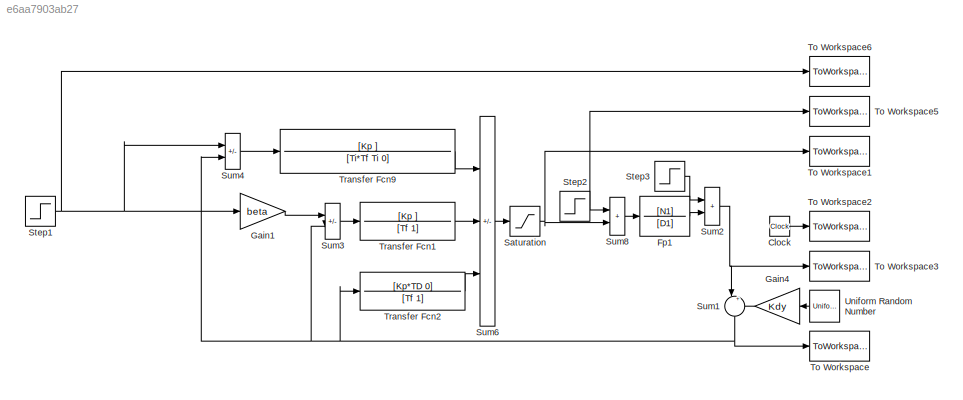
MODEL slx_e6aa7903ab27
KIND model
CONFIG AbsTol = atol
CONFIG EnableMultiTasking = off
CONFIG FixedStep = auto
CONFIG MaxStep = Tsm
CONFIG MinStep = auto
CONFIG RelTol = rtol
CONFIG SampleTimeConstraint = Unconstrained
CONFIG Solver = ode45
CONFIG SolverName = ode45
CONFIG StartTime = 0.0
CONFIG StopTime = simT
BLOCK [Clock] Clock
BLOCK [TransferFcn] Fp1
  Denominator = [D1]
  Numerator = [N1]
BLOCK [Gain] Gain1
  Gain = beta
  OutDataTypeStr = Inherit: Same as input
  ParamDataTypeStr = Inherit: Same as input
  SaturateOnIntegerOverflow = on
BLOCK [Gain] Gain4
  Gain = Kdy
  OutDataTypeStr = Inherit: Same as input
  ParamDataTypeStr = Inherit: Same as input
  SaturateOnIntegerOverflow = on
BLOCK [Saturate] Saturation
  LowerLimit = Umin
  UpperLimit = Umax
BLOCK [Step] Step1
  After = w1
  Before = w0
  SampleTime = Ts
  Time = tw
BLOCK [Step] Step2
  After = di1
  Before = di0
  SampleTime = Ts
  Time = ti
BLOCK [Step] Step3
  After = do
  Before = do0
  SampleTime = Ts
  Time = to
BLOCK [Sum] Sum1
  InputSameDT = on
  Inputs = |++
  OutDataTypeStr = Inherit: Same as first input
  Ports = [2, 1]
  SaturateOnIntegerOverflow = on
BLOCK [Sum] Sum2
  IconShape = rectangular
  InputSameDT = on
  OutDataTypeStr = Inherit: Same as first input
  Ports = [2, 1]
  SaturateOnIntegerOverflow = on
BLOCK [Sum] Sum3
  IconShape = rectangular
  InputSameDT = on
  Inputs = +-
  OutDataTypeStr = Inherit: Same as first input
  Ports = [2, 1]
  SaturateOnIntegerOverflow = on
BLOCK [Sum] Sum4
  IconShape = rectangular
  InputSameDT = on
  Inputs = +-
  OutDataTypeStr = Inherit: Same as first input
  Ports = [2, 1]
  SaturateOnIntegerOverflow = on
BLOCK [Sum] Sum6
  IconShape = rectangular
  InputSameDT = on
  Inputs = ++-
  OutDataTypeStr = Inherit: Same as first input
  Ports = [3, 1]
  SaturateOnIntegerOverflow = on
BLOCK [Sum] Sum8
  IconShape = rectangular
  InputSameDT = on
  OutDataTypeStr = Inherit: Same as first input
  Ports = [2, 1]
  SaturateOnIntegerOverflow = on
BLOCK [ToWorkspace] To Workspace
  MaxDataPoints = inf
  Ports = [1]
  SampleTime = Ts
  VariableName = ym
BLOCK [ToWorkspace] To Workspace1
  MaxDataPoints = inf
  Ports = [1]
  SampleTime = Ts
  VariableName = u
BLOCK [ToWorkspace] To Workspace2
  MaxDataPoints = inf
  Ports = [1]
  SampleTime = Ts
  VariableName = t
BLOCK [ToWorkspace] To Workspace3
  MaxDataPoints = inf
  Ports = [1]
  SampleTime = Ts
  VariableName = y
BLOCK [ToWorkspace] To Workspace5
  MaxDataPoints = inf
  Ports = [1]
  SampleTime = Ts
  VariableName = die
BLOCK [ToWorkspace] To Workspace6
  MaxDataPoints = inf
  Ports = [1]
  SampleTime = Ts
  VariableName = wi
BLOCK [TransferFcn] Transfer Fcn1
  Denominator = [Tf 1]
  Numerator = [Kp ]
BLOCK [TransferFcn] Transfer Fcn2
  Denominator = [Tf 1]
  Numerator = [Kp*TD  0]
BLOCK [TransferFcn] Transfer Fcn9
  Denominator = [Ti*Tf Ti 0]
  Numerator = [Kp ]
BLOCK [UniformRandomNumber] Uniform Random Number
  Maximum = dy
  Minimum = -dy
  SampleTime = Ts
LINE Clock:1 -> To Workspace2:1
LINE Fp1:1 -> Sum2:2
LINE Gain1:1 -> Sum3:1
LINE Gain4:1 -> Sum1:2
NET Saturation:1 -> Sum8:2, To Workspace1:1
NET Step1:1 -> Gain1:1, Sum4:1, To Workspace6:1
NET Step2:1 -> Sum8:1, To Workspace5:1
LINE Step3:1 -> Sum2:1
NET Sum1:1 -> Sum3:2, Sum4:2, To Workspace:1, Transfer Fcn2:1
NET Sum2:1 -> Sum1:1, To Workspace3:1
LINE Sum3:1 -> Transfer Fcn1:1
LINE Sum4:1 -> Transfer Fcn9:1
LINE Sum6:1 -> Saturation:1
LINE Sum8:1 -> Fp1:1
LINE Transfer Fcn1:1 -> Sum6:2
LINE Transfer Fcn2:1 -> Sum6:3
LINE Transfer Fcn9:1 -> Sum6:1
LINE Uniform Random Number:1 -> Gain4:1
note: NET lines group one-source signal fan-out (src -> all destinations, sorted); 1:1 wires keep LINE
